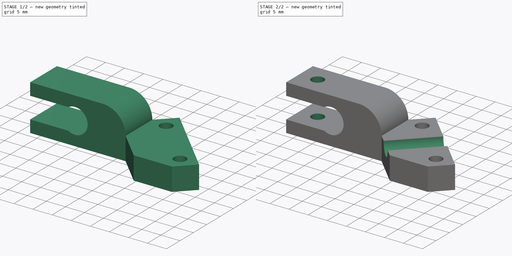
[diagram: build sequence overview — one tinted view per stage of 2, left to right]
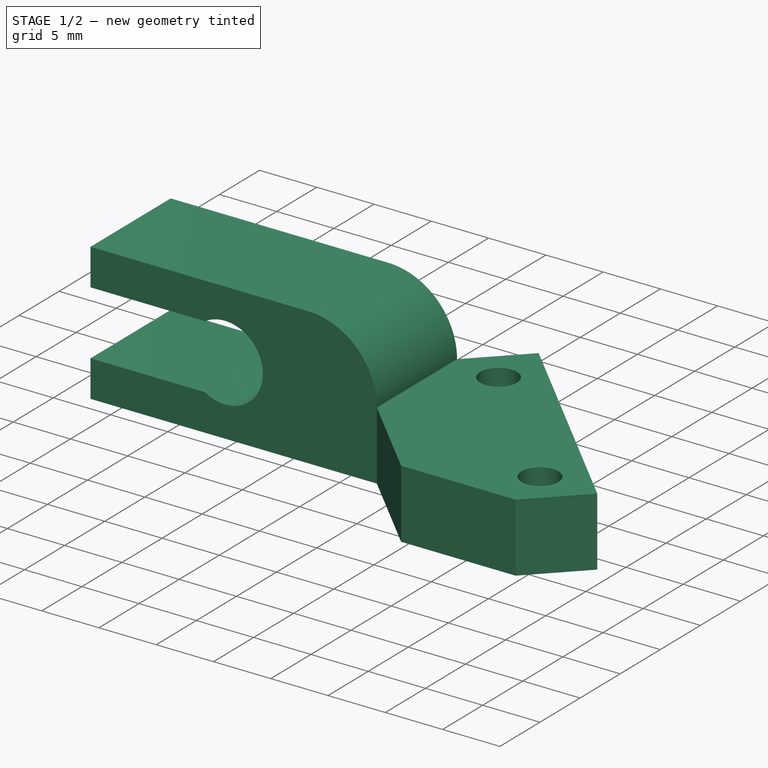
[diagram: stage 1 of 2 — iso view after this stage's code; geometry added in this stage tinted green]
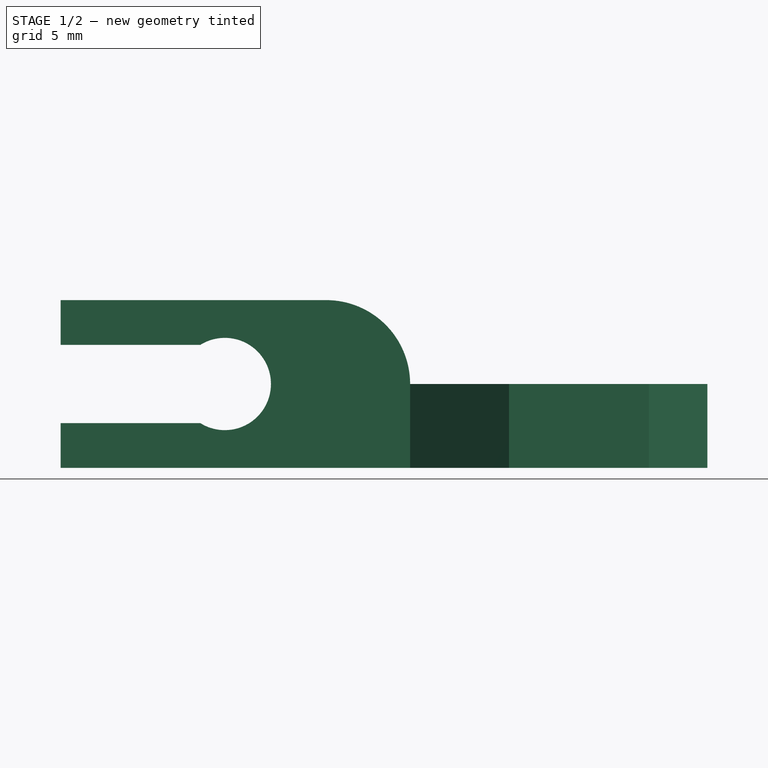
[diagram: stage 1 of 2 — front view after this stage's code; geometry added in this stage tinted green]
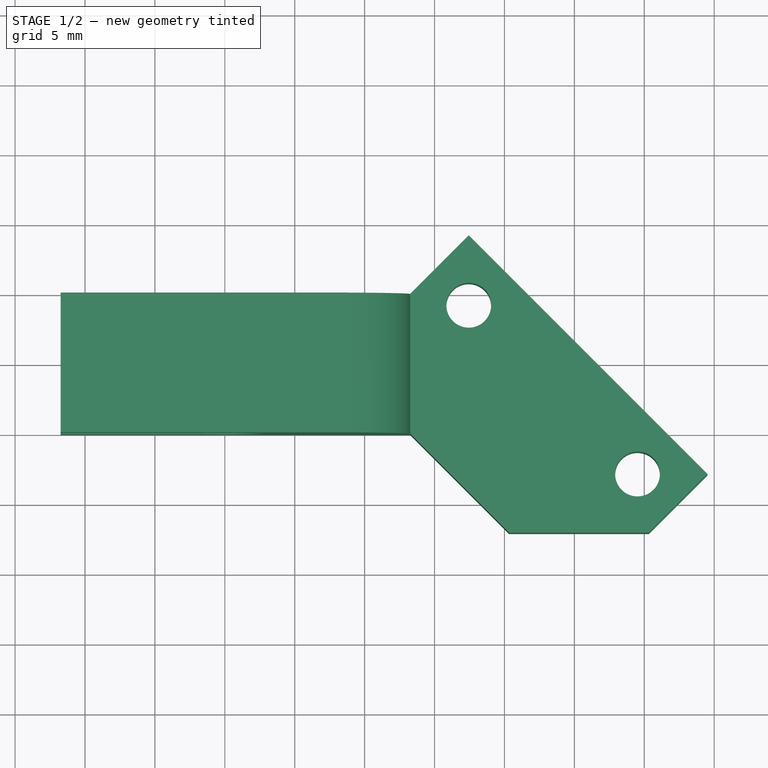
[diagram: stage 1 of 2 — top view after this stage's code; geometry added in this stage tinted green]
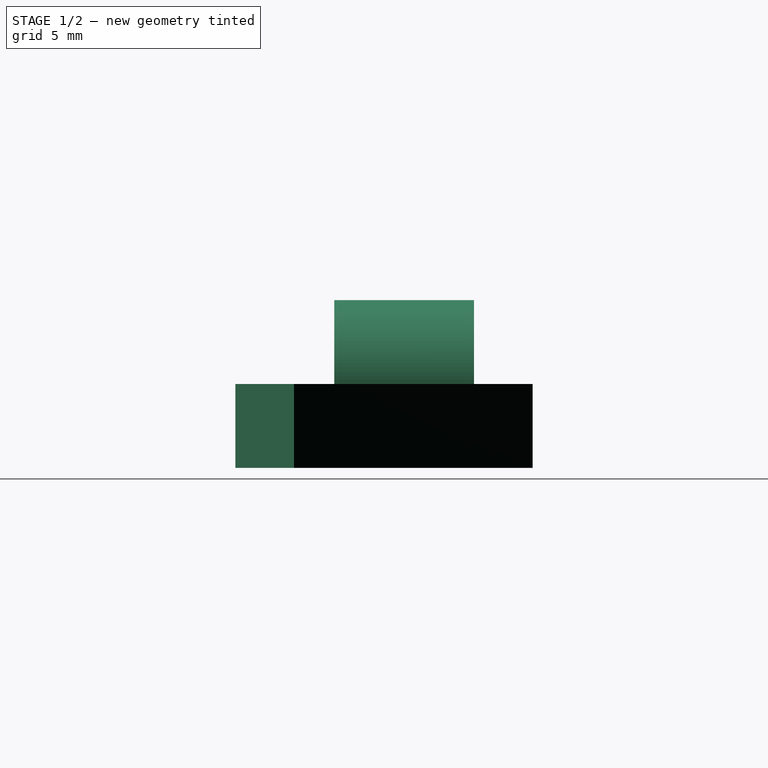
[diagram: stage 1 of 2 — right view after this stage's code; geometry added in this stage tinted green]
FCSTD DOCUMENT  (FreeCAD 0.18R14090 (Git))
Label: FrameTensionerClip_M5
License: All rights reserved
LicenseURL: http://en.wikipedia.org/wiki/All_rights_reserved
objects: Sketcher::SketchObject×4, PartDesign::Pad×2, PartDesign::Pocket×2, PartDesign::Plane×1, PartDesign::Body×1, App::Part×1
note: 14 computed .brp shape members not serialized (recipe doc carries the construction recipe); baked Part::Feature solids carry a one-line shape summary decoded from their .brp

FEATURE [Sketcher::SketchObject] Sketch003  label="ClipBaseSketch"
  MapMode = 5
  Placement = pos=(0,0,0) rot=(1,0,0;1.5708rad)
  sketch-geometry (10):
    g0: LineSegment StartX=13.2536 StartY=-6 StartZ=0 EndX=-11.7464 EndY=-6 EndZ=0
    g1: LineSegment StartX=-11.7464 StartY=-2.8 StartZ=0 EndX=-11.7464 EndY=-6 EndZ=0
    g2: ArcOfCircle CenterX=0 CenterY=0 CenterZ=0 NormalX=0 NormalY=0 NormalZ=1 AngleXU=0 Radius=3.3 StartAngle=4.15471 EndAngle=8.41166
    g3: LineSegment StartX=-1.74642 StartY=-2.8 StartZ=0 EndX=-11.7464 EndY=-2.8 EndZ=0
    g4: LineSegment StartX=-1.74642 StartY=2.8 StartZ=0 EndX=-11.7464 EndY=2.8 EndZ=0
    g5: LineSegment StartX=7.25358 StartY=6 StartZ=0 EndX=-11.7464 EndY=6 EndZ=0
    g6: LineSegment StartX=-11.7464 StartY=2.8 StartZ=0 EndX=-11.7464 EndY=6 EndZ=0
    g7: LineSegment StartX=13.2536 StartY=0 StartZ=0 EndX=13.2536 EndY=-6 EndZ=0
    g8: ArcOfCircle CenterX=7.25358 CenterY=0 CenterZ=0 NormalX=0 NormalY=0 NormalZ=1 AngleXU=0 Radius=6 StartAngle=0 EndAngle=1.5708
    g9: LineSegment [constr] StartX=7.25358 StartY=0 StartZ=0 EndX=13.2536 EndY=0 EndZ=0
  constraints (30):
    c: Horizontal(g0)
    c: Coincident(g1,g0)
    c: Radius(g2) = 3.3
    c: Symmetric(g2,g2,g-1)
    c: Coincident(g3,g2)
    c: Horizontal(g3)
    c: Coincident(g4,g2)
    c: Horizontal(g4)
    c: Horizontal(g5)
    c: Coincident(g6,g4)
    c: Coincident(g6,g5)
    c: Vertical(g6)
    c: Coincident(g1,g3)
    c: Vertical(g1)
    c: Equal(g4,g3)
    c: Distance(g2,g2) = 5.6
    c: Coincident(g2,g-1)
    c: Equal(g1,g6)
    c: Distance(g0,g5) = 12
    c: PointOnObject(g7,g-1)
    c: Vertical(g7)
    c: Distance(g4) = 10
    c: Distance(g0) = 25
    c: Coincident(g8,g5)
    c: Coincident(g9,g8)
    c: Coincident(g9,g8)
    c: Horizontal(g9)
    c: Angle(g8) = 1.5708
    c: Coincident(g7,g0)
    c: Coincident(g8,g7)
FEATURE [PartDesign::Pad] Pad  label="ClipBasePad"
  Length = 10
  Length2 = 100
  Placement = pos=(0,0,0) rot=(1,0,0;1.5708rad)
  Profile = -> Sketch003
  Type = 0
FEATURE [Sketcher::SketchObject] Sketch  label="RodClip1Sketch"
  ExternalGeometry = -> [Sketch003]
  MapMode = 5
  Support = -> [XY_Plane001]
  sketch-geometry (16):
    g0: LineSegment StartX=13.2536 StartY=-10 StartZ=0 EndX=20.3246 EndY=-17.0711 EndZ=0
    g1: LineSegment StartX=30.3246 StartY=-17.0711 StartZ=0 EndX=20.3246 EndY=-17.0711 EndZ=0
    g2: LineSegment StartX=13.2536 StartY=0 StartZ=0 EndX=13.2536 EndY=-10 EndZ=0
    g3: LineSegment StartX=13.2536 StartY=0 StartZ=0 EndX=17.446 EndY=4.19239 EndZ=0
    g4: LineSegment StartX=30.3246 StartY=-17.0711 StartZ=0 EndX=34.517 EndY=-12.8787 EndZ=0
    g5: LineSegment StartX=34.517 StartY=-12.8787 StartZ=0 EndX=17.446 EndY=4.19239 EndZ=0
    g6: LineSegment [constr] StartX=13.2536 StartY=-10 StartZ=0 EndX=22.446 EndY=-0.807612 EndZ=0
    g7: LineSegment [constr] StartX=20.3246 StartY=-17.0711 StartZ=0 EndX=29.517 EndY=-7.87868 EndZ=0
    g8: LineSegment [constr] StartX=14.946 StartY=1.69239 StartZ=0 EndX=17.446 EndY=-0.807612 EndZ=0
    g9: LineSegment [constr] StartX=17.446 StartY=-0.807612 StartZ=0 EndX=19.946 EndY=-3.30761 EndZ=0
    g10: LineSegment [constr] StartX=17.446 StartY=-0.807612 StartZ=0 EndX=19.946 EndY=1.69239 EndZ=0
    g11: LineSegment [constr] StartX=27.017 StartY=-10.3787 StartZ=0 EndX=29.517 EndY=-12.8787 EndZ=0
    g12: LineSegment [constr] StartX=29.517 StartY=-12.8787 StartZ=0 EndX=32.017 EndY=-10.3787 EndZ=0
    g13: LineSegment [constr] StartX=29.517 StartY=-12.8787 StartZ=0 EndX=32.017 EndY=-15.3787 EndZ=0
    g14: Circle CenterX=17.446 CenterY=-0.807612 CenterZ=0 NormalX=0 NormalY=0 NormalZ=1 AngleXU=0 Radius=1.6
    g15: Circle CenterX=29.517 CenterY=-12.8787 CenterZ=0 NormalX=0 NormalY=0 NormalZ=1 AngleXU=0 Radius=1.6
  constraints (47):
    c: Coincident(g1,g0)
    c: Horizontal(g1)
    c: Coincident(g2,g0)
    c: Vertical(g2)
    c: Distance(g2) = 10
    c: Distance(g0) = 10
    c: Angle(g0,g2) = 2.35619
    c: Coincident(g3,g2)
    c: Coincident(g4,g1)
    c: Coincident(g5,g4)
    c: Coincident(g5,g3)
    c: Parallel(g5,g0)
    c: Perpendicular(g4,g5)
    c: Perpendicular(g3,g5)
    c: Equal(g1,g2)
    c: Distance(g0,g5) = 13
    c: Coincident(g2,g-3)
    c: Coincident(g6,g0)
    c: PointOnObject(g6,g5)
    c: Coincident(g7,g0)
    c: PointOnObject(g7,g5)
    c: Parallel(g7,g6)
    c: Parallel(g6,g3)
    c: PointOnObject(g8,g3)
    c: Coincident(g9,g8)
    c: PointOnObject(g9,g6)
    c: Coincident(g10,g8)
    c: PointOnObject(g10,g5)
    c: Perpendicular(g9,g10)
    c: Parallel(g9,g8)
    c: Perpendicular(g6,g9)
    c: Equal(g9,g10)
    c: Equal(g10,g8)
    c: PointOnObject(g11,g7)
    c: Coincident(g12,g11)
    c: PointOnObject(g12,g5)
    c: Coincident(g13,g11)
    c: PointOnObject(g13,g4)
    c: Parallel(g13,g11)
    c: Perpendicular(g12,g13)
    c: Equal(g13,g12)
    c: Equal(g12,g11)
    c: Perpendicular(g7,g11)
    c: Coincident(g14,g8)
    c: Coincident(g15,g11)
    c: Equal(g15,g14)
    c: Radius(g14) = 1.6
FEATURE [PartDesign::Pad] Pad001  label="RodClip1Pad"
  BaseFeature = -> Pad
  Length = 6
  Length2 = 6
  Placement = pos=(0,0,0) rot=(1,0,0;1.5708rad)
  Profile = -> Sketch
  Reversed = true
  Type = 0
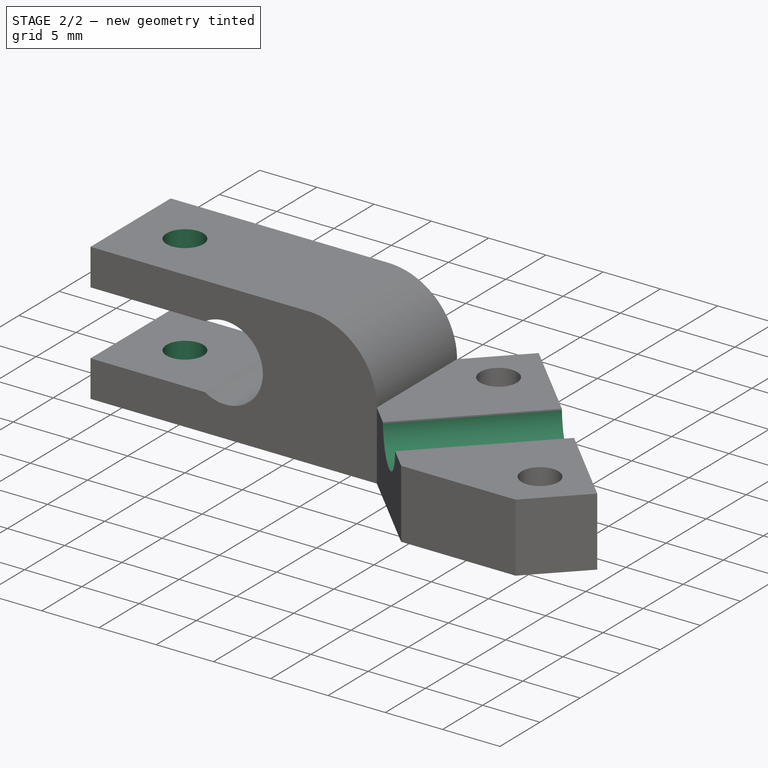
[diagram: stage 2 of 2 — iso view after this stage's code; geometry added in this stage tinted green]
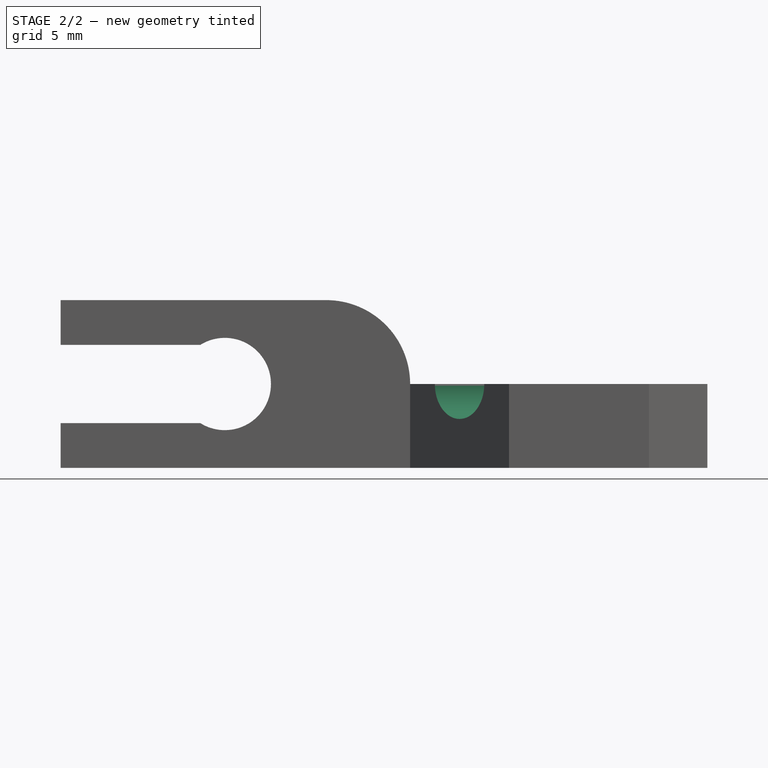
[diagram: stage 2 of 2 — front view after this stage's code; geometry added in this stage tinted green]
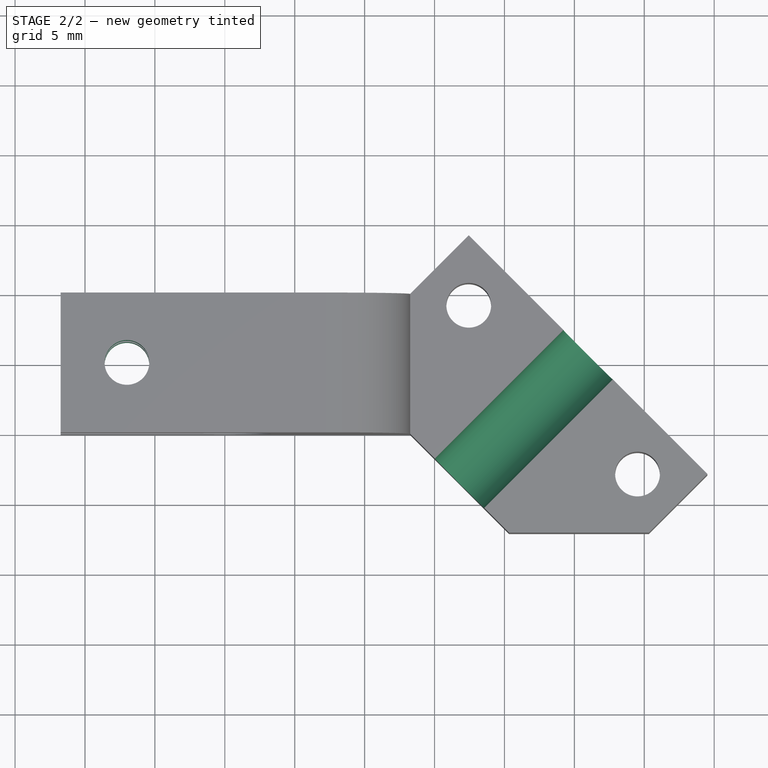
[diagram: stage 2 of 2 — top view after this stage's code; geometry added in this stage tinted green]
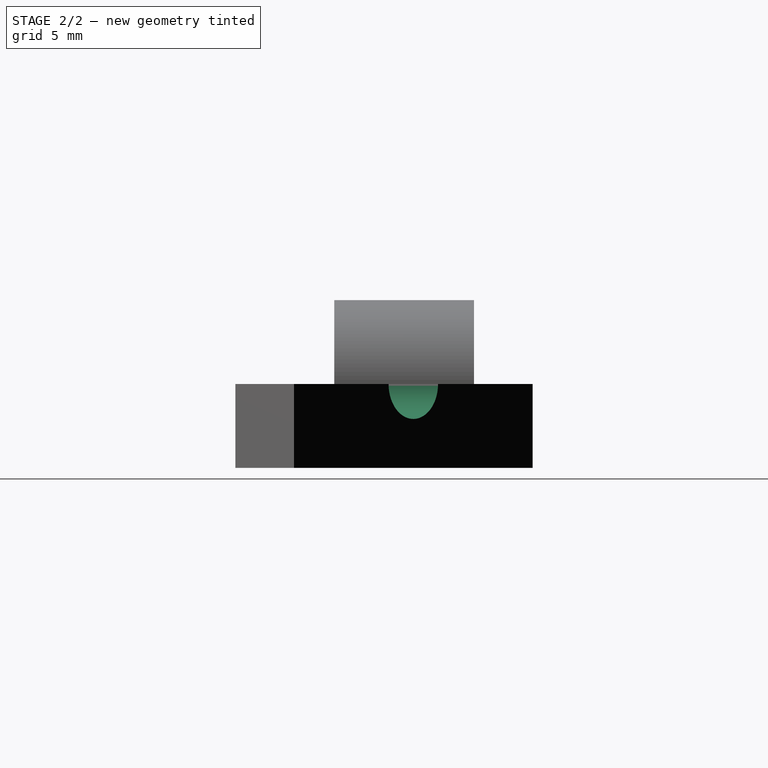
[diagram: stage 2 of 2 — right view after this stage's code; geometry added in this stage tinted green]
FEATURE [PartDesign::Plane] DatumPlane  label="RodClip2Plane"
  AttachmentOffset = pos=(-3.5,0,0) rot=(1,0,0;0.785398rad)
  MapMode = 2
  Placement = pos=(-1e-12,1e-12,3.5) rot=(0.678598,0.281085,-0.678598;2.59356rad)
  Support = -> [Z_Axis001]
FEATURE [Sketcher::SketchObject] Sketch004  label="RodClip2Sketch"
  ExternalGeometry = -> [Sketch]
  MapMode = 5
  Placement = pos=(-1e-12,1e-12,3.5) rot=(0.678598,0.281085,-0.678598;2.59356rad)
  Support = -> [DatumPlane]
  sketch-geometry (3):
    g0: Circle CenterX=3.5 CenterY=21.4428 CenterZ=0 NormalX=0 NormalY=0 NormalZ=1 AngleXU=0 Radius=2.5
    g1: LineSegment [constr] StartX=3.5 StartY=21.4428 StartZ=0 EndX=3.5 EndY=26.4428 EndZ=0
    g2: LineSegment [constr] StartX=3.5 StartY=21.4428 StartZ=0 EndX=3.5 EndY=16.4428 EndZ=0
  constraints (7):
    c: Coincident(g1,g0)
    c: Coincident(g1,g-3)
    c: Coincident(g2,g0)
    c: Coincident(g2,g-3)
    c: Equal(g2,g1)
    c: Radius(g0) = 2.5
    c: PointOnObject(g0,g-3)
FEATURE [PartDesign::Pocket] Pocket  label="RodClip2Pocket"
  BaseFeature = -> Pad001
  Length = 5
  Length2 = 100
  Placement = pos=(0,0,0) rot=(1,0,0;1.5708rad)
  Profile = -> Sketch004
  Type = 1
FEATURE [Sketcher::SketchObject] Sketch005  label="ScrewHoleSketch"
  MapMode = 5
  Support = -> [XY_Plane001]
  sketch-geometry (1):
    g0: Circle CenterX=-7 CenterY=-5 CenterZ=0 NormalX=0 NormalY=0 NormalZ=1 AngleXU=0 Radius=1.6
  constraints (3):
    c: Distance(g0,g-1) = 5
    c: Distance(g0,g-2) = 7
    c: Radius(g0) = 1.6
FEATURE [PartDesign::Pocket] Pocket001  label="ScrewHolePocket"
  BaseFeature = -> Pocket
  Length = 5
  Length2 = 100
  Midplane = true
  Placement = pos=(0,0,0) rot=(1,0,0;1.5708rad)
  Profile = -> Sketch005
  Type = 1
FEATURE [PartDesign::Body] Body  label="ClipBody"
  Group = -> [Sketch003,Pad,Sketch,Pad001,DatumPlane,Sketch004,Pocket,Sketch005,Pocket001]
  Origin = -> Origin001
  Tip = -> Pocket001
FEATURE [App::Part] Part  label="ClipPartBase"
  Group = -> [Body]
  License = CC BY 3.0
  LicenseURL = http://creativecommons.org/licenses/by/3.0/
  Origin = -> Origin
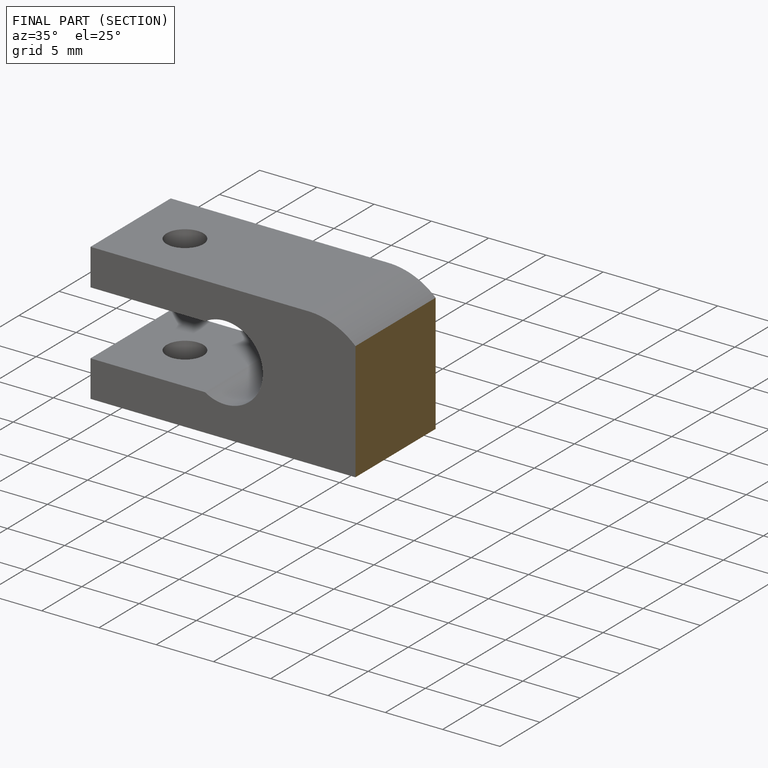
[diagram: finished part — half-section view (interior)]
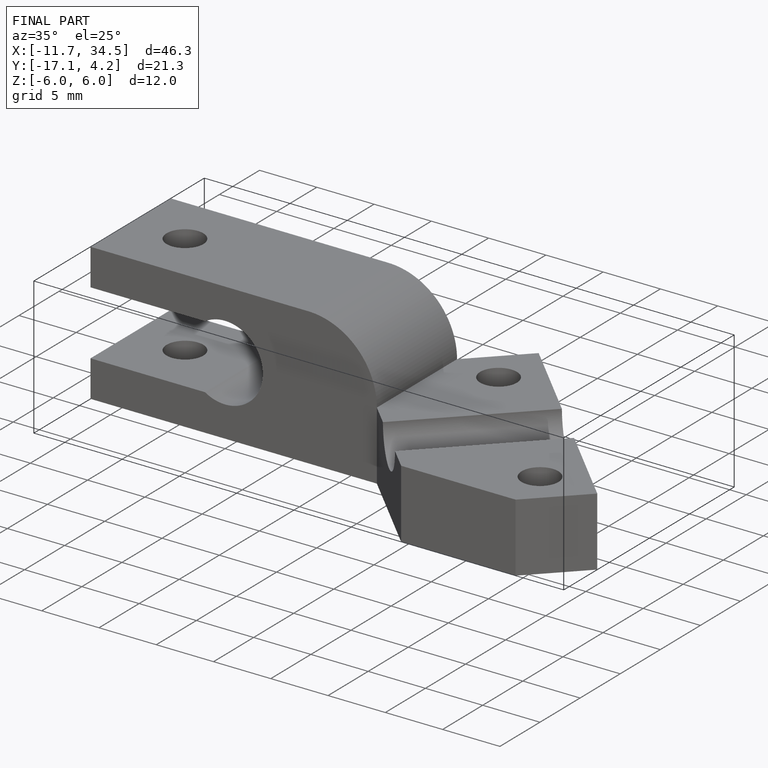
[diagram: finished part — iso view with bounding-box wireframe]
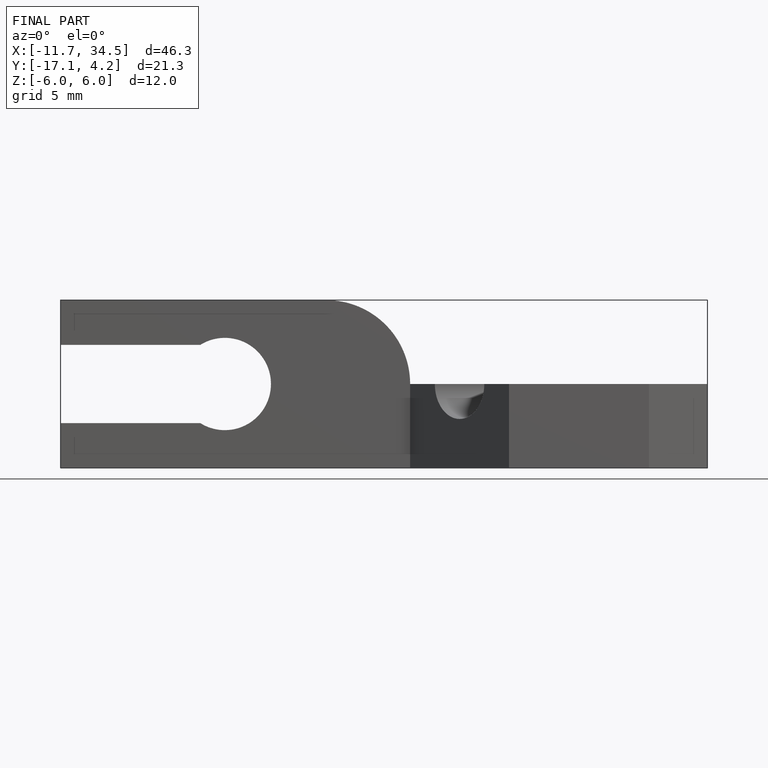
[diagram: finished part — front view with bounding-box wireframe]
